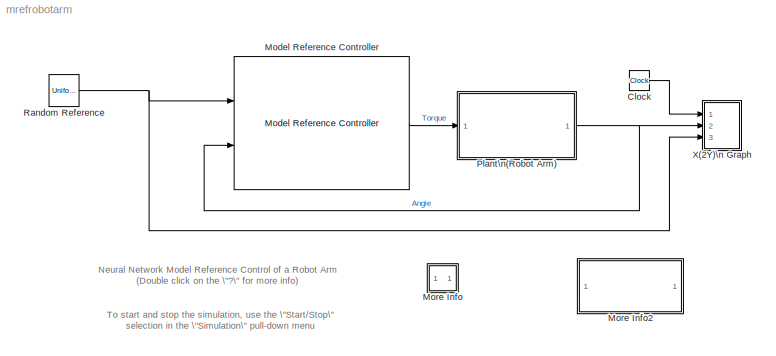
MODEL mrefrobotarm
KIND model
CONFIG AbsTol = 1e-6
CONFIG FixedStep = auto
CONFIG MaxStep = auto
CONFIG MinStep = auto
CONFIG RelTol = 1e-3
CONFIG Solver = ode45
CONFIG SolverMode = SingleTasking
CONFIG StartTime = 0.0
CONFIG StopTime = 60
BLOCK [Clock] Clock
  Decimation = 10
BLOCK [Reference] Model Reference Controller  REF=neural/Control Systems/Model Reference Controller
  B1 = [8.3454601861727848;-1.7488652958811703;0.66134602652445429;1.9828413629191783;2.8470577972675652;0.0013587107297852578;-3.0111623514274384;-1.3201798813874432;0.88505814110298575;0.0084913784378921556]
  B1_c = [2.5275336083252959;-2.015153508209353;-1.573574939030099;0.24807575673883855;0.72804063587227263;-0.15009860896928837;-0.14566022969189182;-0.14503306001354413;0.80257458525071157;-2.3204357652991572;-1.7091111210606085;-2.1755082369914769;2.3060895543527407]
  B2 = 0.26583865321126832
  B2_c = -0.89128704544185799
  IW = [0.67556972299583085 -0.69678512012524063;0.00091251541328585956 -0.0027081486615356675;0.00020438440527543628 0.00019904673243416438;0.00049656346445165877 0.0004751589166608323;0.83784411703306994 -0.26889964997200294;-0.00019020895770413364 -0.00011909258917915059;-0.40317423125635427 0.4194745680490527;-0.57818696835623018 0.57975674359031992;-0.00022043349689196401 -0.00021518711933560483;-0....<+45ch>
  IW_r = [0.43133604056604929 2.2349303840625012;-0.25268785262535298 0.53956550757338506;-1.3942416031489167 1.6812760026264273;-2.2712469519952609 1.8940014540102785;0.62638823833708646 -1.5393599650914611;-1.3412735806395613 1.994061751122143;0.88233358538907281 -1.1149566012207308;1.2015877427658499 0.060457901863100086;1.3973493005875692 -1.2246446473460524;-1.1621604385833166 -1.1103119260029528;-1.7...<+113ch>
  IW_u = [-0.28646849912653372;0.2082294676863414;-0.38700612728754513;-0.088356433428576742;-0.38246650005135652;-0.19979049829155976;0.12950350585422027;-0.076665336474221038;-0.26363250966352098;0.20162500315525875;0.15592324620945688;-0.28346970834751034;0.055516027366232526]
  IW_y = [-0.069572273964750006 -0.50887837019159299;0.15074312774051651 0.11490189363692252;0.18140136858776268 0.37975663959876699;0.29517102307725995 -0.44709921582493495;-0.58875973816560423 -0.0401771725539046;0.72902870715668755 -0.58159644016547762;-0.79473114301336234 0.80685810458654827;-0.7203623145291248 1.750020475218397;0.32928031663047497 -0.34567654549749322;-0.68792644345580523 -1.221143572...<+131ch>
  LW1_2 = [1.2764115081604008 -1.3654567744259543;0.89310137588971361 1.0042430979155006;0.33273669122142152 -0.15270262190099879;0.71703040374417737 -0.36195588775915477;-2.5505602345955283 -4.1931013065877298;-0.48162311647991762 0.1228304948598478;1.5080087551662273 -1.7803806270961875;0.58957956932235933 -0.1379494539478418;-0.35268820684492125 0.16442179826947986;-0.49711480585257867 0.1475847102078819...<+2ch>
  LW2_1 = [-1.3652007830674679e-006 -0.0002723650242372647 4.3375977757897157 0.38766138633249286 1.2167137492000295e-006 2.7535219948226088 1.2897509057532762e-006 -1.2811132141620941e-006 -4.4162135512266767 -2.9235276934566996]
  LW_c = [0.0090810097275292444 1.016994132671448 -0.57703994488362598 -1.4828532318010392 0.21544013872474743 -2.0819490128456084 1.951101458107841 2.2265872491488485 -0.20951152443698737 -2.4183248929210941 -0.17557803620122728 0.4111829140769851 -0.13651025081277837]
  Limit_output = 1
  Ni = 2
  Nic = 1
  Nj = 2
  Njc = 2
  Normalize = 0
  Nrc = 2
  Ports = [2, 1]
  Ref_file = robotref
  S1 = 10
  S1c = 13
  SourceBlock = neural/Control Systems/Model Reference Controller
  SourceType = NN Model Reference Control
  Ts = 0.05
  Use_Inc_training = 0
  Use_Testing = 1
  Use_previous_weights = 1
  Use_validation = 1
  epochs = 300
  epochs_c = 10
  max_i = 15
  max_i_int = 2
  max_output = 3.1
  max_r = 0.7
  max_r_int = 2
  maxp = 14.990917500914531
  maxt = 3.2985736367119713
  min_i = -15
  min_i_int = 0.1
  min_output = -3.1
  min_r = -0.7
  min_r_int = 0.1
  minp = -14.938368446677966
  mint = -3.3006125056148323
  retraining_c = 30
  sam_training = 10000
  sam_training_c = 6000
  sim_file = robotarm
  trainfun = trainlm
BLOCK [SubSystem] More Info
  MaskDisplay = disp('?')
  MaskIconFrame = on
  MaskIconOpaque = on
  MaskIconRotate = none
  MaskIconUnits = autoscale
  Ports = []
  TreatAsAtomicUnit = off
BLOCK [SubSystem] More Info2
  MaskDisplay = disp('Double click\\nhere for\\nSimulink Help')
  MaskIconFrame = on
  MaskIconOpaque = on
  MaskIconRotate = none
  MaskIconUnits = autoscale
  OpenFcn = simcad(bdroot)
  Ports = []
  TreatAsAtomicUnit = off
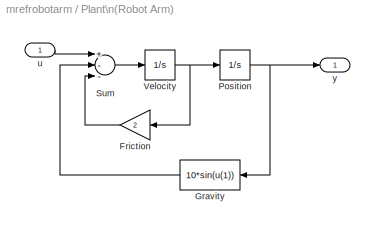
BLOCK [SubSystem] Plant\n(Robot Arm)
  MaskDisplay = plot([-10],[0],[10],[0],[-2 -2 2 2 -2],[5 4 4 5 5],[0 3],[4.5 0.5])
  MaskIconFrame = on
  MaskIconOpaque = on
  MaskIconRotate = none
  MaskIconUnits = autoscale
  Ports = [1, 1]
  TreatAsAtomicUnit = off
BLOCK [Gain] Plant\n(Robot Arm)/Friction
  Gain = 2
BLOCK [Fcn] Plant\n(Robot Arm)/Gravity
  Expr = 10*sin(u(1))
BLOCK [Integrator] Plant\n(Robot Arm)/Position
  Ports = [1, 1]
  ZeroCross = off
BLOCK [Sum] Plant\n(Robot Arm)/Sum
  Inputs = +--
  Ports = [3, 1]
BLOCK [Integrator] Plant\n(Robot Arm)/Velocity
  Ports = [1, 1]
  ZeroCross = off
BLOCK [Inport] Plant\n(Robot Arm)/u
BLOCK [Outport] Plant\n(Robot Arm)/y
BLOCK [UniformRandomNumber] Random Reference
  Maximum = 0.5
  Minimum = -0.5
  SampleTime = 10
  Seed = round(now)
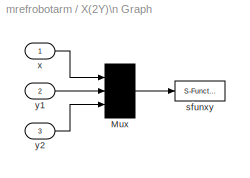
BLOCK [SubSystem] X(2Y)\n Graph
  CopyFcn = sfunxy2([],[],[],'CopyBlock')
  DeleteFcn = sfunxy2([],[],[],'DeleteBlock')
  LoadFcn = sfunxy2([],[],[],'LoadBlock')
  MaskCallbackString = ||||
  MaskDescription = X(2Y) scope using MATLAB graph window.  First input is used as time base.  Enter plotting ranges.
  MaskDisplay = plot([.05 .95 .95 .05 .05],[.45 .45 .95 .95 .45], 0.5+cos(0:0.1:2*pi)*0.3,0.7+sin(0:0.1:2*pi)*0.2)
  MaskEnableString = on,on,on,on,on
  MaskHelp = This block can be used to explore limit cycles. Look at the m-file sfunxy.m to see how it works.
  MaskIconFrame = on
  MaskIconOpaque = on
  MaskIconRotate = none
  MaskIconUnits = normalized
  MaskPromptString = x-min:|x-max:|y-min:|y-max:|Sample time:
  MaskSelfModifiable = on
  MaskStyleString = edit,edit,edit,edit,edit
  MaskToolTipString = on,on,on,on,on
  MaskTunableValueString = on,on,on,on,on
  MaskType = X(2Y) scope.
  MaskValueString = 0|5|-1|1|-1
  MaskVarAliasString = ,,,,
  MaskVariables = xmin=@1;xmax=@2;ymin=@3;ymax=@4;st=@5;
  MaskVisibilityString = on,on,on,on,on
  NameChangeFcn = sfunxy2([],[],[],'NameChange')
  Ports = [3]
  StartFcn = sfunxy2([],[],[],'Start')
  StopFcn = sfunxy2([],[],[],'Stop')
  TreatAsAtomicUnit = off
BLOCK [Mux] X(2Y)\n Graph/Mux
  Inputs = 3
  Ports = [3, 1]
BLOCK [S-Function] X(2Y)\n Graph/sfunxy
  FunctionName = sfunxy2
  Parameters = [xmin xmax ymin ymax], st
  Ports = [1]
BLOCK [Inport] X(2Y)\n Graph/x
BLOCK [Inport] X(2Y)\n Graph/y1
  Port = 2
BLOCK [Inport] X(2Y)\n Graph/y2
  Port = 3
ANNOTATION (root): Neural Network Model Reference Control of a Robot Arm\n(Double click on the \"?\" for more info)
ANNOTATION (root): To start and stop the simulation, use the \"Start/Stop\"\nselection in the \"Simulation\" pull-down menu
ANNOTATION More Info: Double-click on the Model Reference Controller block\nto train the neural network controller and plant model.
ANNOTATION More Info: For more information on what the controller \ndoes, look under the mask of the Model Reference \nController block.
ANNOTATION More Info: This system simulates model reference control\nof a single-link robot arm.
LINE Clock:1 -> X(2Y)\n Graph:1
LINE Model Reference Controller:1 -> Plant\n(Robot Arm):1
LINE Plant\n(Robot Arm)/Friction:1 -> Plant\n(Robot Arm)/Sum:3
LINE Plant\n(Robot Arm)/Gravity:1 -> Plant\n(Robot Arm)/Sum:2
NET Plant\n(Robot Arm)/Position:1 -> Plant\n(Robot Arm)/Gravity:1, Plant\n(Robot Arm)/y:1
LINE Plant\n(Robot Arm)/Sum:1 -> Plant\n(Robot Arm)/Velocity:1
NET Plant\n(Robot Arm)/Velocity:1 -> Plant\n(Robot Arm)/Friction:1, Plant\n(Robot Arm)/Position:1
LINE Plant\n(Robot Arm)/u:1 -> Plant\n(Robot Arm)/Sum:1
NET Plant\n(Robot Arm):1 -> Model Reference Controller:2, X(2Y)\n Graph:2
NET Random Reference:1 -> Model Reference Controller:1, X(2Y)\n Graph:3
LINE X(2Y)\n Graph/Mux:1 -> X(2Y)\n Graph/sfunxy:1
LINE X(2Y)\n Graph/x:1 -> X(2Y)\n Graph/Mux:1
LINE X(2Y)\n Graph/y1:1 -> X(2Y)\n Graph/Mux:2
LINE X(2Y)\n Graph/y2:1 -> X(2Y)\n Graph/Mux:3
note: NET lines group one-source signal fan-out (src -> all destinations, sorted); 1:1 wires keep LINE
